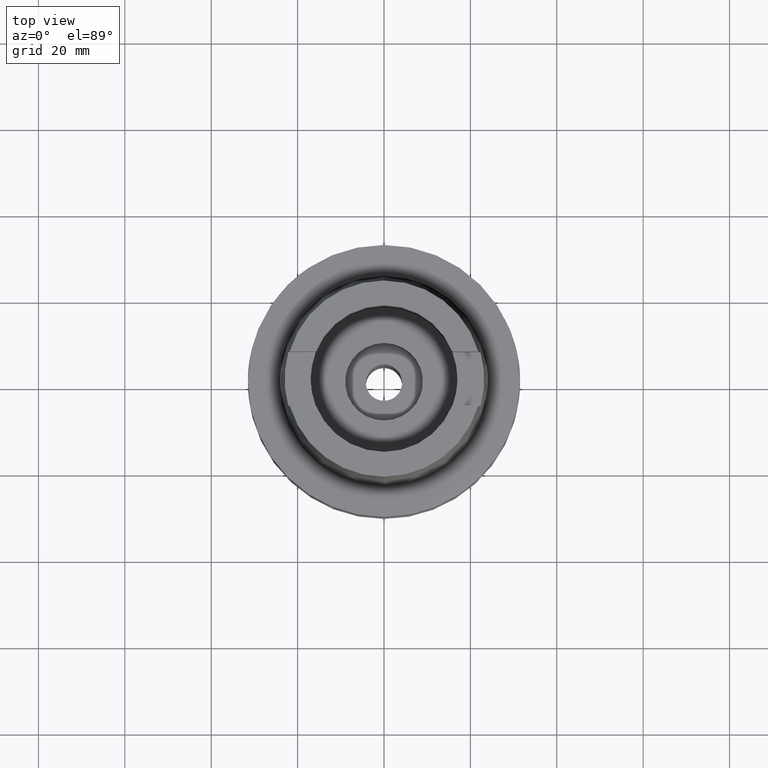
[diagram: clean part render]
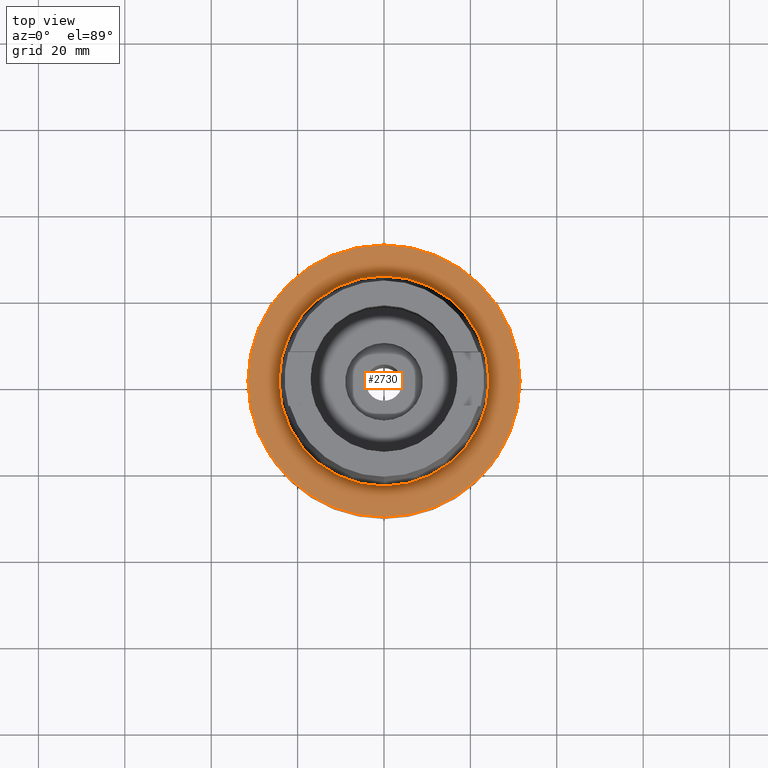
[diagram: same view with one face highlighted and labeled with its STEP entity id]
A machine part, top view. The second image highlights one B-rep face of the part: STEP entity #2730.
In plain terms, the highlighted planar face has unit normal (0, 0, 1).
Its self-contained STEP definition (entity closure, byte-faithful):
#342=CARTESIAN_POINT('',(0.E0,0.E0,-1.563194018672E-13));
#343=DIRECTION('',(0.E0,0.E0,-1.E0));
#344=DIRECTION('',(0.E0,-1.E0,0.E0));
#345=AXIS2_PLACEMENT_3D('',#342,#343,#344);
#350=CARTESIAN_POINT('',(0.E0,0.E0,-1.563194018672E-13));
#351=DIRECTION('',(0.E0,0.E0,-1.E0));
#352=DIRECTION('',(0.E0,1.E0,0.E0));
#353=AXIS2_PLACEMENT_3D('',#350,#351,#352);
#358=CARTESIAN_POINT('',(0.E0,0.E0,9.094947017729E-13));
#359=DIRECTION('',(0.E0,0.E0,1.E0));
#360=DIRECTION('',(0.E0,-1.E0,0.E0));
#361=AXIS2_PLACEMENT_3D('',#358,#359,#360);
#366=CARTESIAN_POINT('',(0.E0,0.E0,9.094947017729E-13));
#367=DIRECTION('',(0.E0,0.E0,1.E0));
#368=DIRECTION('',(0.E0,1.E0,0.E0));
#369=AXIS2_PLACEMENT_3D('',#366,#367,#368);
#2204=CARTESIAN_POINT('',(0.E0,-2.431503482329E1,6.075140390749E-13));
#2205=VERTEX_POINT('',#2204);
#2206=CARTESIAN_POINT('',(0.E0,2.431503482329E1,9.094947017729E-13));
#2207=VERTEX_POINT('',#2206);
#2480=CARTESIAN_POINT('',(0.E0,3.15E1,-6.631732200428E-14));
#2481=VERTEX_POINT('',#2480);
#2482=CARTESIAN_POINT('',(0.E0,-3.15E1,-1.563194018672E-13));
#2483=VERTEX_POINT('',#2482);
#2715=CARTESIAN_POINT('',(0.E0,0.E0,0.E0));
#2716=DIRECTION('',(0.E0,0.E0,1.E0));
#2717=DIRECTION('',(0.E0,1.E0,0.E0));
#2718=AXIS2_PLACEMENT_3D('',#2715,#2716,#2717);
#2719=PLANE('',#2718);
#2721=ORIENTED_EDGE('',*,*,#2720,.T.);
#2723=ORIENTED_EDGE('',*,*,#2722,.T.);
#2724=EDGE_LOOP('',(#2721,#2723));
#2725=FACE_OUTER_BOUND('',#2724,.F.);
#2726=ORIENTED_EDGE('',*,*,#2702,.T.);
#2727=ORIENTED_EDGE('',*,*,#2678,.T.);
#2728=EDGE_LOOP('',(#2726,#2727));
#2729=FACE_BOUND('',#2728,.F.);
#346=CIRCLE('',#345,3.15E1);
#354=CIRCLE('',#353,3.15E1);
#362=CIRCLE('',#361,2.431503482329E1);
#370=CIRCLE('',#369,2.431503482329E1);
#2678=EDGE_CURVE('',#2207,#2205,#370,.T.);
#2702=EDGE_CURVE('',#2205,#2207,#362,.T.);
#2720=EDGE_CURVE('',#2483,#2481,#346,.T.);
#2722=EDGE_CURVE('',#2481,#2483,#354,.T.);
#2730=ADVANCED_FACE('',(#2725,#2729),#2719,.T.);